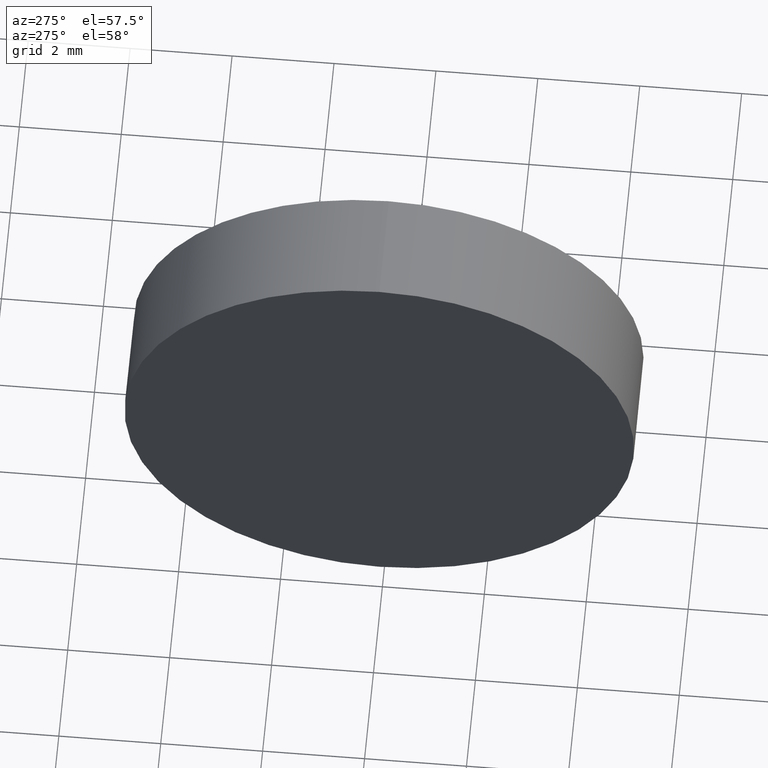
[diagram: clean part render]
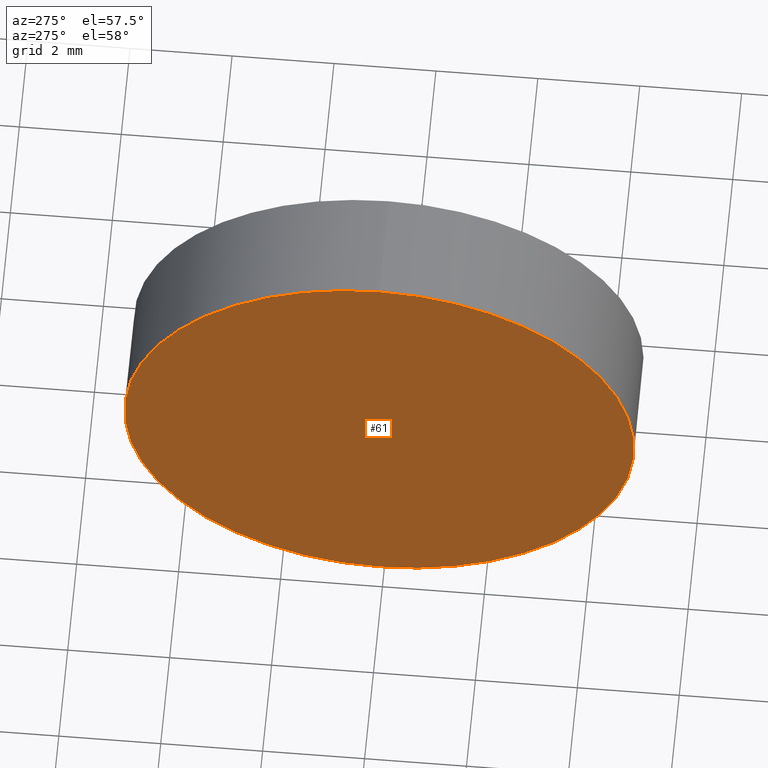
[diagram: same view with one face highlighted and labeled with its STEP entity id]
A machine part, auxiliary view. The second image highlights one B-rep face of the part: STEP entity #61.
In plain terms, the highlighted planar face has unit normal (1, 0, 0).
Its self-contained STEP definition (entity closure, byte-faithful):
#5 = DIRECTION ( 'NONE',  ( -1.000000000000000000, -0.0000000000000000000, -0.0000000000000000000 ) ) ;
#7 = CARTESIAN_POINT ( 'NONE',  ( 44.31958549791029600, 26.08904114919495900, 0.0000000000000000000 ) ) ;
#8 = EDGE_CURVE ( 'NONE', #183, #85, #186, .T. ) ;
#18 = AXIS2_PLACEMENT_3D ( 'NONE', #115, #35, #145 ) ;
#28 = AXIS2_PLACEMENT_3D ( 'NONE', #7, #148, #66 ) ;
#29 = CARTESIAN_POINT ( 'NONE',  ( 44.31958549791029600, 26.08904114919495900, 5.000000000000000900 ) ) ;
#30 = EDGE_LOOP ( 'NONE', ( #171, #143 ) ) ;
#35 = DIRECTION ( 'NONE',  ( -1.000000000000000000, -0.0000000000000000000, -0.0000000000000000000 ) ) ;
#39 = DIRECTION ( 'NONE',  ( 0.0000000000000000000, 0.0000000000000000000, 1.000000000000000000 ) ) ;
#59 = EDGE_CURVE ( 'NONE', #85, #183, #170, .T. ) ;
#61 = ADVANCED_FACE ( 'NONE', ( #113 ), #147, .F. ) ;
#66 = DIRECTION ( 'NONE',  ( 0.0000000000000000000, 0.0000000000000000000, -1.000000000000000000 ) ) ;
#85 = VERTEX_POINT ( 'NONE', #29 ) ;
#103 = AXIS2_PLACEMENT_3D ( 'NONE', #159, #5, #39 ) ;
#113 = FACE_OUTER_BOUND ( 'NONE', #30, .T. ) ;
#115 = CARTESIAN_POINT ( 'NONE',  ( 44.31958549791029600, 26.08904114919495900, 0.0000000000000000000 ) ) ;
#143 = ORIENTED_EDGE ( 'NONE', *, *, #8, .T. ) ;
#145 = DIRECTION ( 'NONE',  ( 0.0000000000000000000, 0.0000000000000000000, 1.000000000000000000 ) ) ;
#147 = PLANE ( 'NONE',  #28 ) ;
#148 = DIRECTION ( 'NONE',  ( 1.000000000000000000, 0.0000000000000000000, 0.0000000000000000000 ) ) ;
#154 = CARTESIAN_POINT ( 'NONE',  ( 44.31958549791029600, 26.08904114919495900, -5.000000000000000900 ) ) ;
#159 = CARTESIAN_POINT ( 'NONE',  ( 44.31958549791029600, 26.08904114919495900, 0.0000000000000000000 ) ) ;
#170 = CIRCLE ( 'NONE', #18, 5.000000000000000900 ) ;
#171 = ORIENTED_EDGE ( 'NONE', *, *, #59, .T. ) ;
#183 = VERTEX_POINT ( 'NONE', #154 ) ;
#186 = CIRCLE ( 'NONE', #103, 5.000000000000000900 ) ;